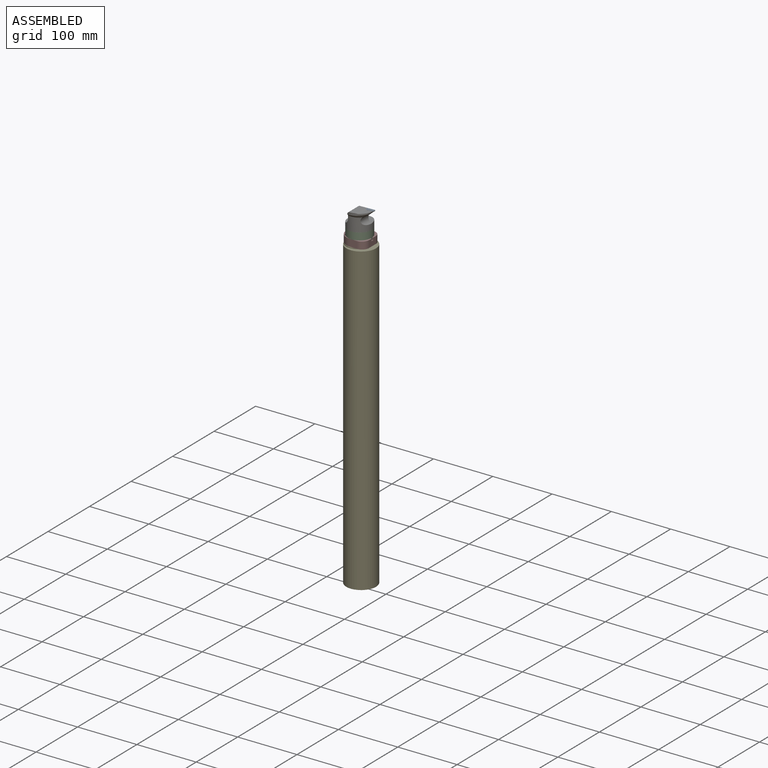
[diagram: assembled view]
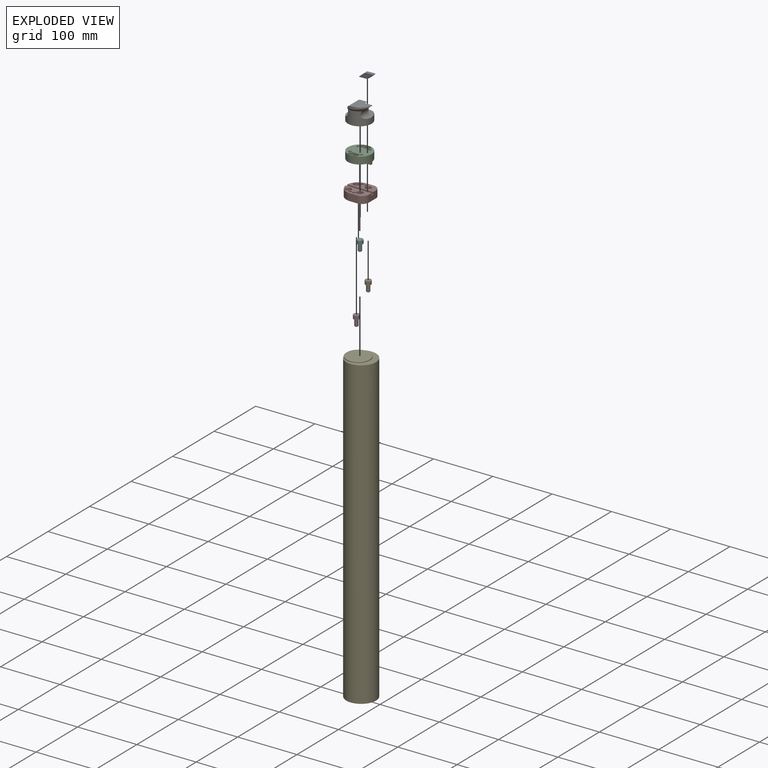
[diagram: exploded view]
GUIDED TOUR — MATED ASSEMBLY (Onshape document 3ae7c87c6261f5c35306a99a, AutoMate assembly 3ae7c87c6261f5c35306a99a_89ab46f55ff38780d8af91c2_a198568c1c7bee800be55abb_default)

This assembly has 8 components, labeled P0..P7 below (a component is one placed occurrence of a part; the same part can appear more than once), held together by 7 mates. A mate is a constraint between two components; its type names the relative motion it leaves free:
  FASTENED — locks the two components together rigidly (no relative motion),
  SLIDER — leaves translation along the listed axis free.
Axis/direction vectors are unit vectors and 'through' points are millimeter coordinates, both in the assembly's world frame.

MATES
  1. FASTENED "Fastened 2": P0 <-> P6, direction (-0.104, -0.995, -0.009) through (-15.68, -11.50, 72.88) mm
  2. FASTENED "Fastened 5": P3 <-> P7, direction (0.000, 0.000, -1.000) through (-40.81, 1.61, 26.77) mm
  3. FASTENED "Fastened 6": P5 <-> P7, direction (0.000, 0.000, -1.000) through (-21.01, -18.19, 26.77) mm
  4. FASTENED "Fastened 4": P1 <-> P7, direction (0.000, 0.000, -1.000) through (-21.01, 1.61, 26.77) mm
  5. FASTENED "Fastened 1": P6 <-> P2, direction (0.000, 0.000, -1.000) through (-28.32, -8.26, 46.77) mm
  6. SLIDER "Slider 1": P7 <-> P2, axis (1.000, 0.000, 0.000) through (-28.86, -6.29, 34.77) mm
  7. FASTENED "Fastened 3": P4 <-> P7, direction (0.000, 0.000, 1.000) through (-30.91, -8.29, 22.77) mm

ASSEMBLY ORDER
  1. P5 — the base component [order verified]
  2. P1 [order verified]
  3. P3 [order verified]
  4. P7 [order verified]
  5. P2 [order verified]
  6. P6 [order verified]
  7. P0 [order verified]
  8. P4 [order verified]
(P7 verified with a relaxed clearance tolerance: the source model stores slight part interference there.)
Order-tag legend:
  [order verified] — this step's position reverses a verified removal order: the component was checked to insert without passing through the ones already placed.

Of the 8 components, 1 carries the full construction recipe — the FeatureScript program that regenerates the part's solid from scratch; the rest are supplied as boundary geometry only.
Each toured component is shown spotlighted twice — in the assembled view, then in the exploded view, where a leader line traces a displaced component back to its assembled socket (saturated green if recipe-attached, orange if geometry-only; every other component desaturated gray) — followed by its recipe or geometry summary and the mates that hold it.
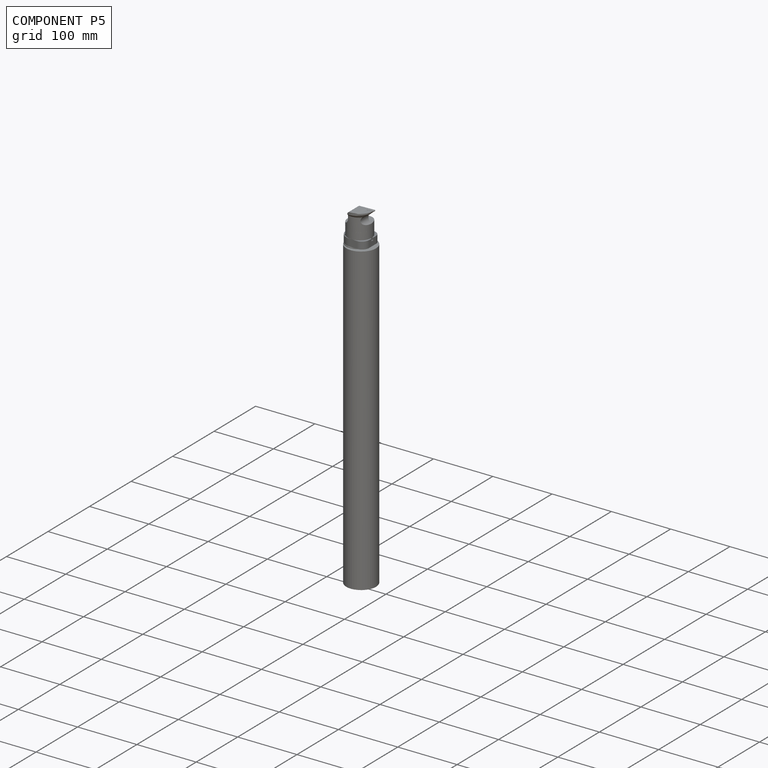
[diagram: component P5 — assembled]
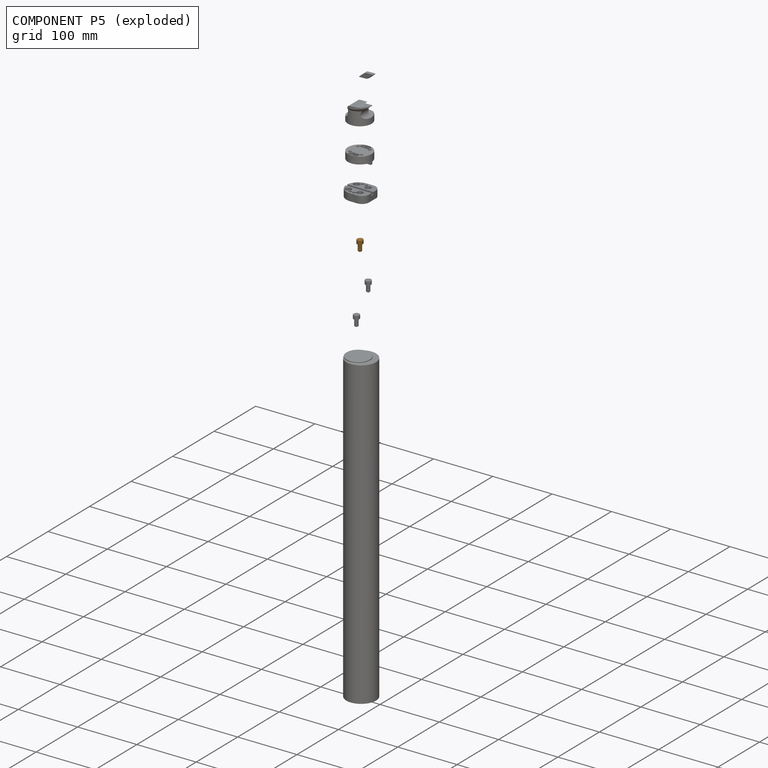
[diagram: component P5 — exploded]
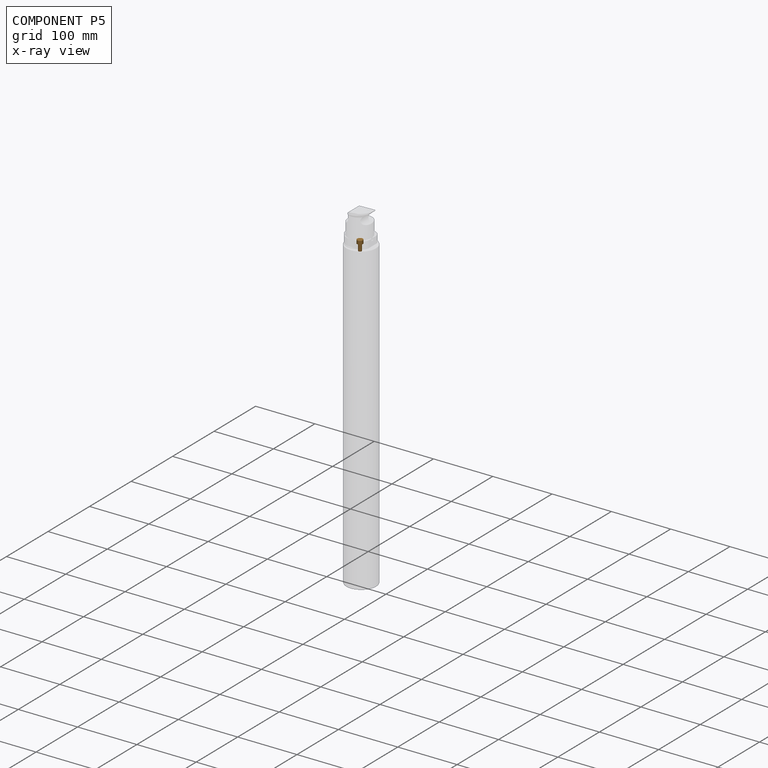
[diagram: component P5 — x-ray view]
COMPONENT P5 — geometry summary (no construction recipe available for this part):
  bounding box: 18.0 x 10.0 x 10.0 mm
  B-rep topology: 1 solid, 6 faces, 16 edges
  volume: 802 mm^3 (45% of its bounding box)
  symmetry: revolution-symmetric about the z axis through its bounding-box center; mirror-symmetric across its x mid-plane, y mid-plane
Held by: FASTENED mate "Fastened 6" to P7.
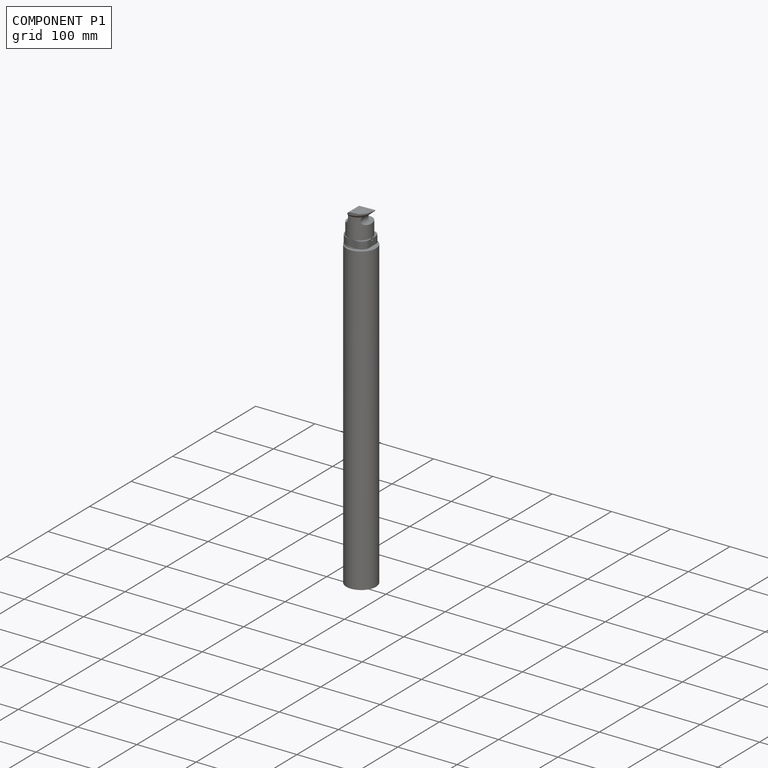
[diagram: component P1 — assembled]
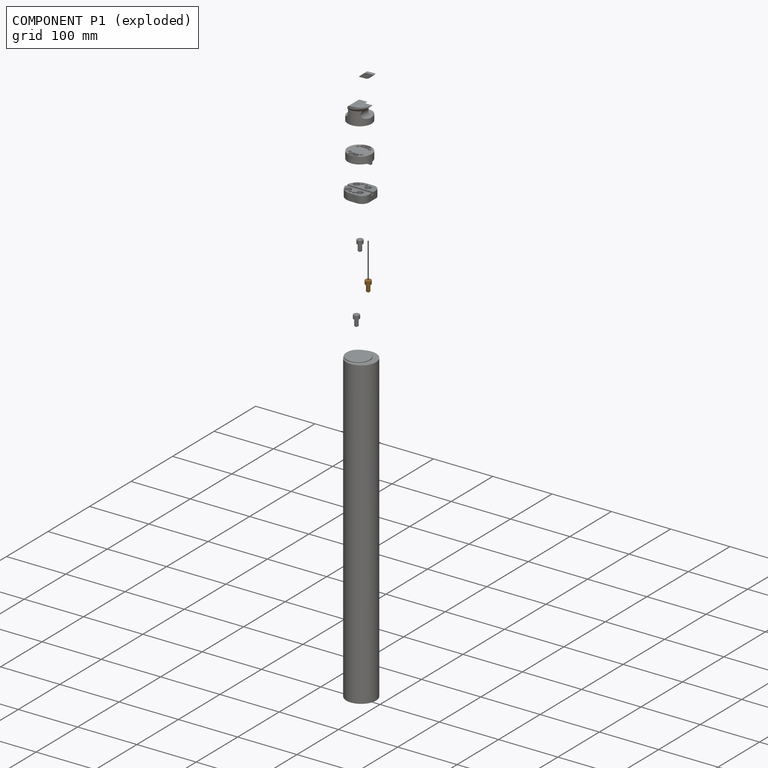
[diagram: component P1 — exploded]
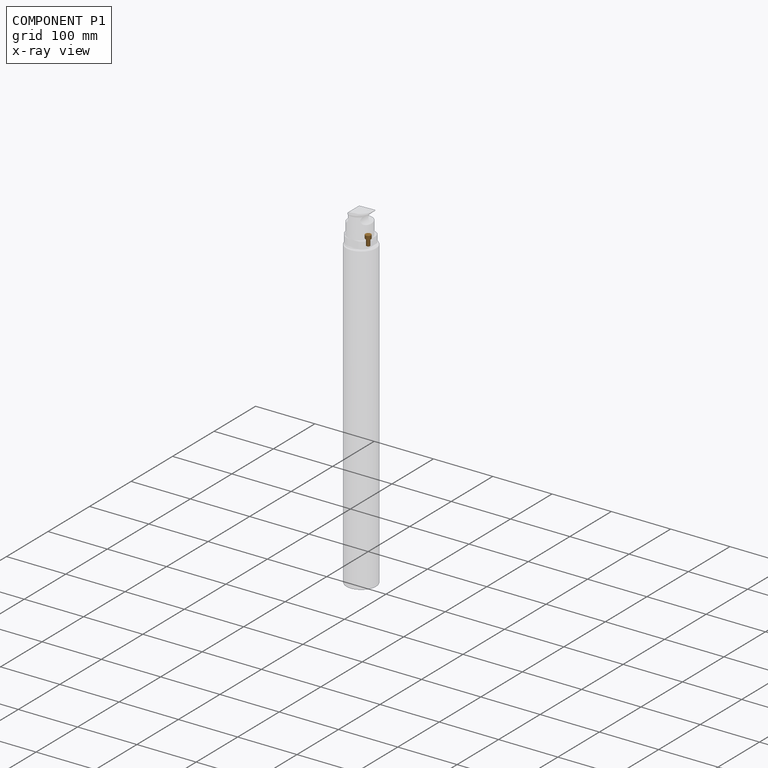
[diagram: component P1 — x-ray view]
COMPONENT P1 — geometry summary (no construction recipe available for this part):
  bounding box: 18.0 x 10.0 x 10.0 mm
  B-rep topology: 1 solid, 6 faces, 16 edges
  volume: 802 mm^3 (45% of its bounding box)
  symmetry: revolution-symmetric about the z axis through its bounding-box center; mirror-symmetric across its x mid-plane, y mid-plane
Held by: FASTENED mate "Fastened 4" to P7.
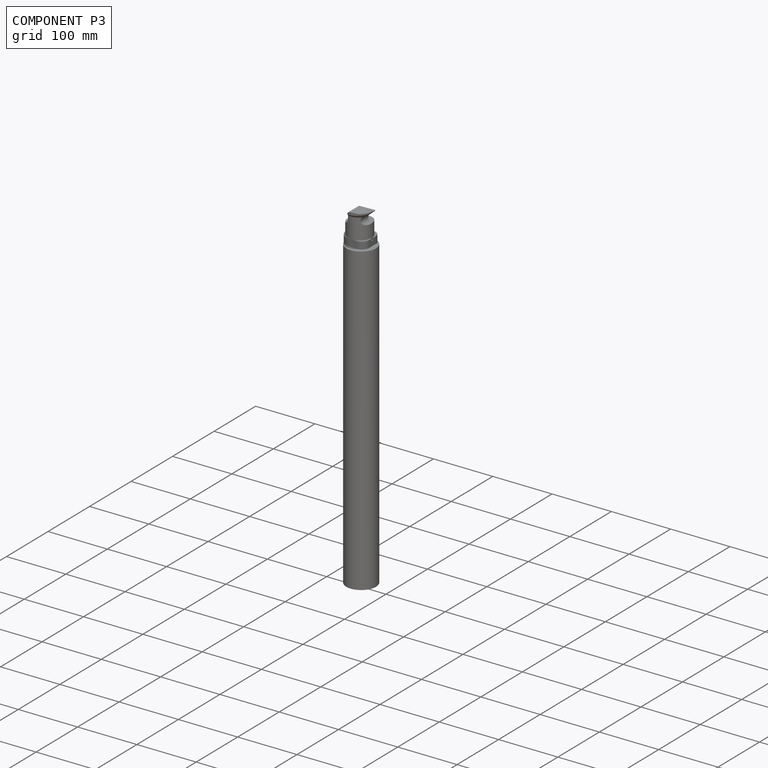
[diagram: component P3 — assembled]
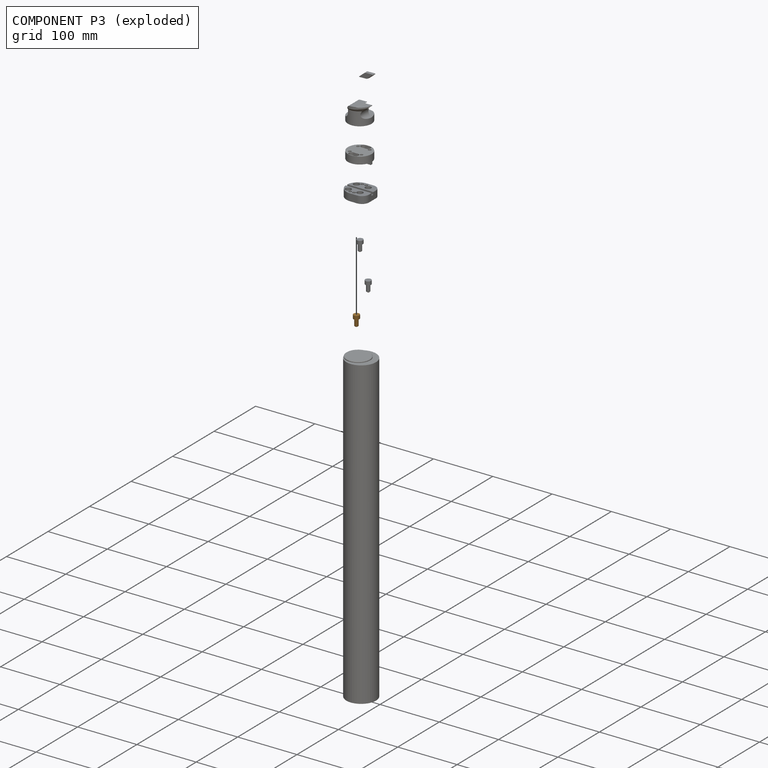
[diagram: component P3 — exploded]
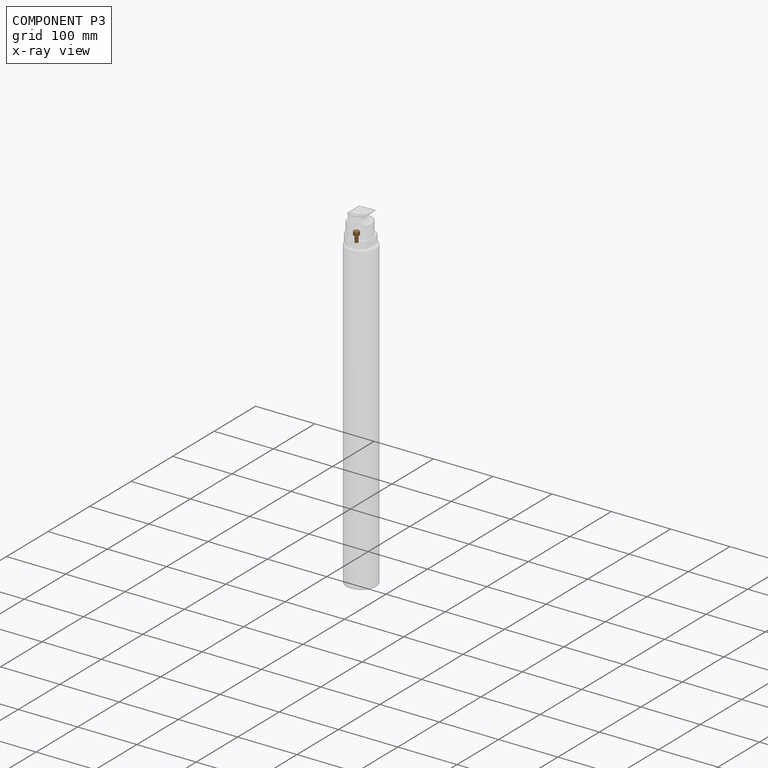
[diagram: component P3 — x-ray view]
COMPONENT P3 — geometry summary (no construction recipe available for this part):
  bounding box: 18.0 x 10.0 x 10.0 mm
  B-rep topology: 1 solid, 6 faces, 16 edges
  volume: 802 mm^3 (45% of its bounding box)
  symmetry: revolution-symmetric about the z axis through its bounding-box center; mirror-symmetric across its x mid-plane, y mid-plane
Held by: FASTENED mate "Fastened 5" to P7.
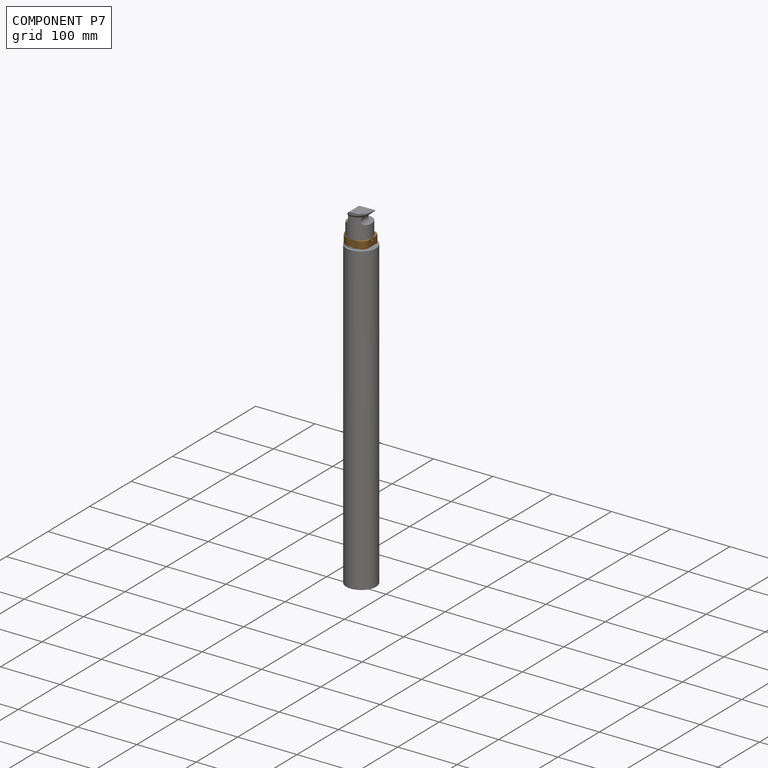
[diagram: component P7 — assembled]
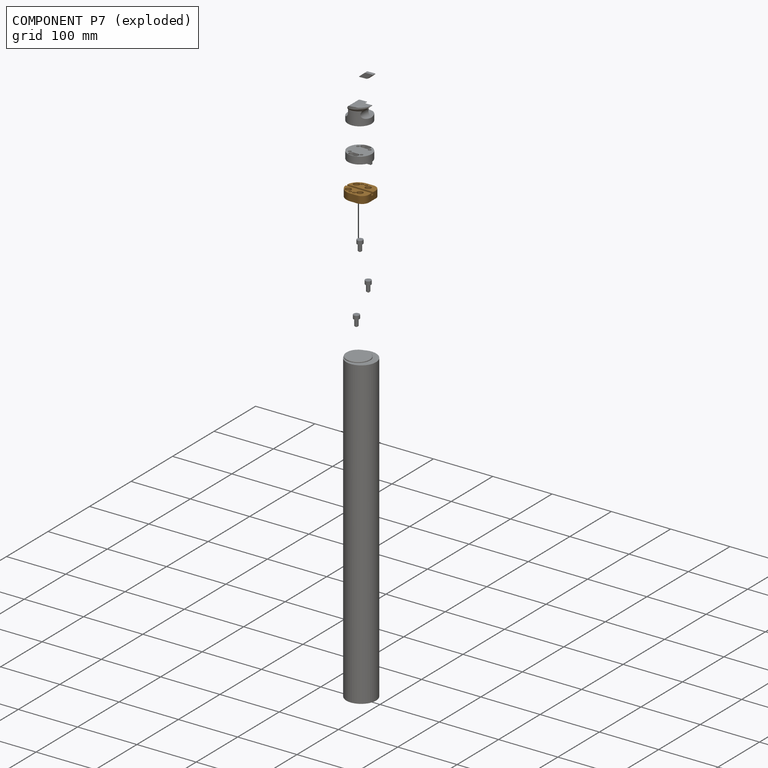
[diagram: component P7 — exploded]
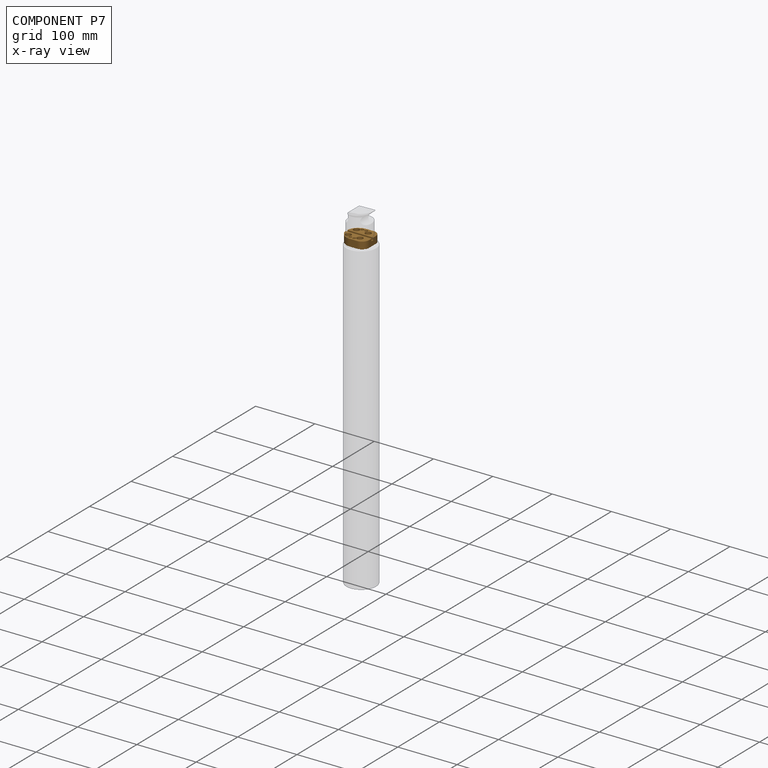
[diagram: component P7 — x-ray view]
COMPONENT P7 — geometry summary (no construction recipe available for this part):
  bounding box: 44.0 x 40.0 x 12.0 mm
  B-rep topology: 1 solid, 28 faces, 132 edges
  volume: 13628 mm^3 (65% of its bounding box)
  symmetry: mirror-symmetric across its y mid-plane
Held by: FASTENED mate "Fastened 5" to P3; FASTENED mate "Fastened 6" to P5; FASTENED mate "Fastened 4" to P1; SLIDER mate "Slider 1" to P2; FASTENED mate "Fastened 3" to P4.
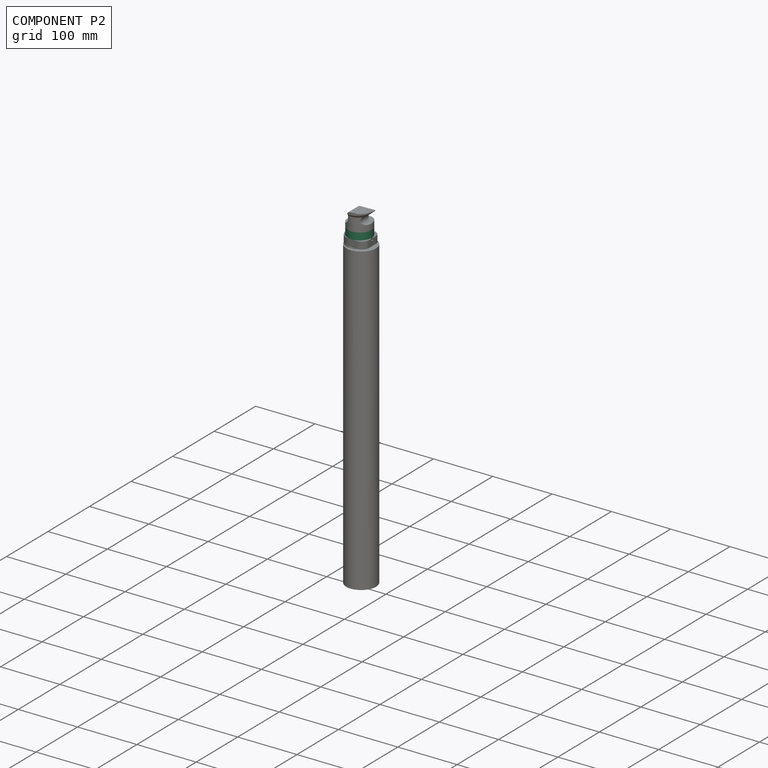
[diagram: component P2 — assembled]
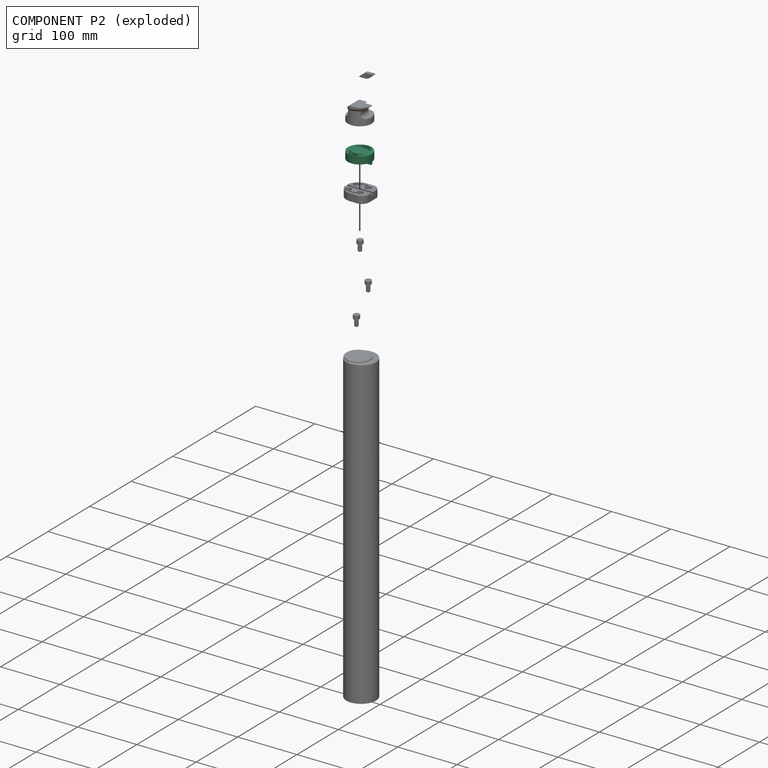
[diagram: component P2 — exploded]
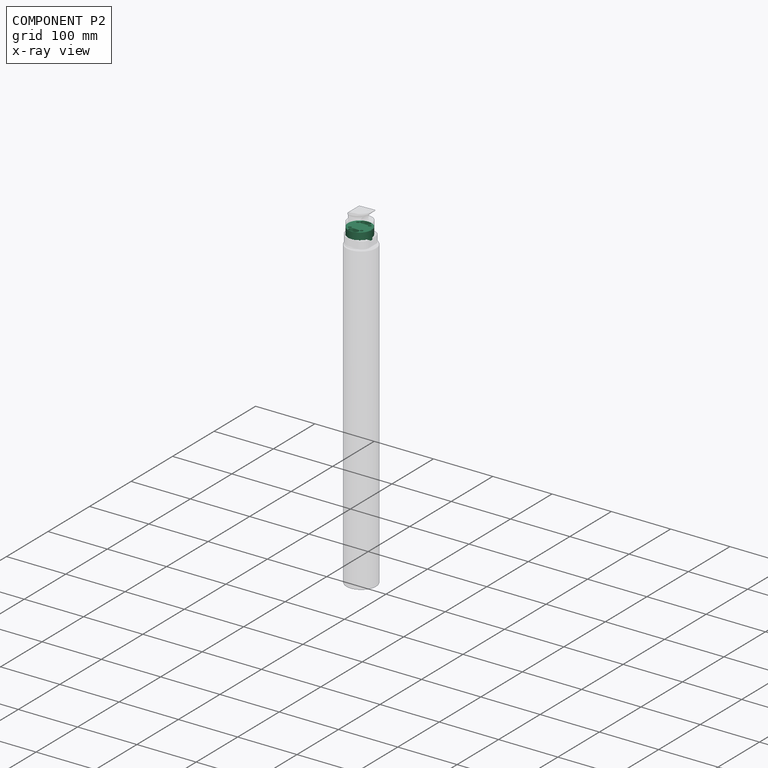
[diagram: component P2 — x-ray view]
COMPONENT P2 — recipe-attached (CADFS 00922199, mesh-verified: the recipe's output STEP matches this component's geometry to below the mesh-comparison resolution (tessellation chordal tolerance ~0.0881 mm)).
Held by: FASTENED mate "Fastened 1" to P6; SLIDER mate "Slider 1" to P7.
Construction recipe (FeatureScript — the CAD program that rebuilds this solid; sketch coordinates are in the units given by the * unit suffixes, e.g. mm):

FeatureScript 1511;
import(path : "onshape/std/geometry.fs", version : "1511.0");
import(path : "onshape/std/common.fs", version : "1511.0");
const mm = millimeter;
const VERTEX = EntityType.VERTEX;
const EDGE = EntityType.EDGE;
const FACE = EntityType.FACE;
const BODY = EntityType.BODY;
function v(x, y){return vector(x, y);}
function OD(order){return orderDisambiguation(order);}
function OSD(set){return originalSetDisambiguation(set);}
function TD(topology){return topologyDisambiguation(topology);}
function TDD(query){return trueDependencyDisambiguation(query);}
function sQuery(a, b, c) {return sketchEntityQuery(a, b, c);}

annotation { "Feature Type Name" : "Feature", "Feature Type Description" : "" }
export const myFeature = defineFeature(function(context is Context, id is Id, definition is map)
    precondition{}
    {
        {
            var Q0;
            Q0=qCreatedBy(makeId("Top.planeOp"),FACE);
            var sketch = newSketch(context, id + "F0", { "sketchPlane" : qUnion([Q0])});
            skCircle(sketch, "E0", {"center": v(0, 0) * mm, "radius": 20 * mm});
            skCircle(sketch, "E1", {"center": v(0, 0) * mm, "radius": 14 * mm, "construction": true});
            skLineSegment(sketch, "E2", {"start": v(0, 0) * mm, "end": v(18.43, 18.43) * mm, "construction": true});
            skCircle(sketch, "E3", {"center": v(9.9, 9.9) * mm, "radius": 2.5 * mm});
            skCircle(sketch, "E4.1.0", {"center": v(-9.9, 9.9) * mm, "radius": 2.5 * mm});
            skCircle(sketch, "E4.2.0", {"center": v(-9.9, -9.9) * mm, "radius": 2.5 * mm});
            skCircle(sketch, "E4.3.0", {"center": v(9.9, -9.9) * mm, "radius": 2.5 * mm});
            skSolve(sketch);
        }
        {
            var Q0;
            Q0=makeQuery(id+"F0.imprint","IMPRINT",FACE,{"disambiguationData":[TD([[makeQuery(id+"F0.imprint","IMPRINT",EDGE,{"derivedFrom":sQuery(id+"F0.wireOp",EDGE,"E0")}),1.0]])]});
            extrude(context, id + "F1", {"entities" : qUnion([Q0]), "depth" : (12) * mm, "offsetDistance" : 25 * mm});
        }
        {
            var Q0;
            Q0=makeQuery(id+"F1.opExtrude","CAP_FACE",FACE,{"disambiguationData":[OSD([sQuery(id+"F0.wireOp",EDGE,"E0"),sQuery(id+"F0.wireOp",EDGE,"E3"),sQuery(id+"F0.wireOp",EDGE,"E4.1.0"),sQuery(id+"F0.wireOp",EDGE,"E4.2.0"),sQuery(id+"F0.wireOp",EDGE,"E4.3.0")])],"isStart":true});
            var sketch = newSketch(context, id + "F2", { "sketchPlane" : qUnion([Q0])});
            skLineSegment(sketch, "E5", {"start": v(-19.9, 1.98) * mm, "end": v(19.9, 1.98) * mm});
            skLineSegment(sketch, "E6", {"start": v(-19.9, -1.98) * mm, "end": v(19.9, -1.98) * mm});
            skSolve(sketch);
        }
        {
            var Q0;
            {var subQ0=sQuery(id+"F2.wireOp",EDGE,"E5");Q0=makeQuery(id+"F2.imprint","IMPRINT",FACE,{"disambiguationData":[TD([[makeQuery(id+"F2.imprint","IMPRINT",EDGE,{"derivedFrom":subQ0}),-1.0]])]});}
            extrude(context, id + "F3", {"entities" : qUnion([Q0]), "operationType" : NewBodyOperationType.ADD, "depth" : 3.9 * mm, "offsetDistance" : 25 * mm});
        }
        {
            var Q0;
            Q0=makeQuery(id+"F1.opExtrude","CAP_FACE",FACE,{"disambiguationData":[OSD([sQuery(id+"F0.wireOp",EDGE,"E0"),sQuery(id+"F0.wireOp",EDGE,"E3"),sQuery(id+"F0.wireOp",EDGE,"E4.1.0"),sQuery(id+"F0.wireOp",EDGE,"E4.2.0"),sQuery(id+"F0.wireOp",EDGE,"E4.3.0")])],"isStart":false});
            var sketch = newSketch(context, id + "F4", { "sketchPlane" : qUnion([Q0])});
            skLineSegment(sketch, "E7", {"start": v(-3.75, 17.5) * mm, "end": v(3.75, 17.5) * mm});
            skArc(sketch, "E8", {"start": v(3.75, 17.5) * mm, "mid": v(6.75, 14.5) * mm, "end": v(3.75, 11.5) * mm});
            skLineSegment(sketch, "E9", {"start": v(3.75, 11.5) * mm, "end": v(-3.75, 11.5) * mm});
            skArc(sketch, "E10", {"start": v(-3.75, 11.5) * mm, "mid": v(-6.75, 14.5) * mm, "end": v(-3.75, 17.5) * mm});
            skLineSegment(sketch, "E11", {"start": v(0, 25.86) * mm, "end": v(0, -24.36) * mm, "construction": true});
            skLineSegment(sketch, "E12.MirrorCS", {"start": v(3.75, -11.5) * mm, "end": v(-3.75, -11.5) * mm});
            skLineSegment(sketch, "E13.MirrorCS", {"start": v(-3.75, -17.5) * mm, "end": v(3.75, -17.5) * mm});
            skArc(sketch, "E14.MirrorCS", {"start": v(-3.75, -11.5) * mm, "mid": v(-6.75, -14.5) * mm, "end": v(-3.75, -17.5) * mm});
            skArc(sketch, "E15.MirrorCS", {"start": v(3.75, -17.5) * mm, "mid": v(6.75, -14.5) * mm, "end": v(3.75, -11.5) * mm});
            skSolve(sketch);
        }
        {
            var Q0;
            Q0=makeQuery(id+"F4.imprint","IMPRINT",FACE,{"disambiguationData":[TD([[makeQuery(id+"F4.imprint","IMPRINT",EDGE,{"derivedFrom":sQuery(id+"F4.wireOp",EDGE,"E7")}),-1.0]])]});
            var Q1;
            Q1=makeQuery(id+"F4.imprint","IMPRINT",FACE,{"disambiguationData":[TD([[makeQuery(id+"F4.imprint","IMPRINT",EDGE,{"derivedFrom":sQuery(id+"F4.wireOp",EDGE,"E12.MirrorCS")}),1.0]])]});
            extrude(context, id + "F5", {"entities" : qUnion([Q0, Q1]), "operationType" : NewBodyOperationType.REMOVE, "endBound" : BoundingType.THROUGH_ALL, "oppositeDirection" : true, "depth" : 25 * mm, "offsetDistance" : 25 * mm});
        }
        {
            var Q0;
            Q0=makeQuery(id+"F1.opExtrude","CAP_FACE",FACE,{"disambiguationData":[OSD([sQuery(id+"F0.wireOp",EDGE,"E0"),sQuery(id+"F0.wireOp",EDGE,"E3"),sQuery(id+"F0.wireOp",EDGE,"E4.1.0"),sQuery(id+"F0.wireOp",EDGE,"E4.2.0"),sQuery(id+"F0.wireOp",EDGE,"E4.3.0")])],"isStart":false});
            var sketch = newSketch(context, id + "F6", { "sketchPlane" : qUnion([Q0])});
            skLineSegment(sketch, "E16.0", {"start": v(-3.75, 19) * mm, "end": v(3.75, 19) * mm});
            skArc(sketch, "E16.1", {"start": v(-3.75, 10) * mm, "mid": v(-8.25, 14.5) * mm, "end": v(-3.75, 19) * mm});
            skLineSegment(sketch, "E16.2", {"start": v(3.75, 10) * mm, "end": v(-3.75, 10) * mm});
            skArc(sketch, "E16.3", {"start": v(3.75, 19) * mm, "mid": v(8.25, 14.5) * mm, "end": v(3.75, 10) * mm});
            skLineSegment(sketch, "E17.0", {"start": v(3.75, -10) * mm, "end": v(-3.75, -10) * mm});
            skArc(sketch, "E17.1", {"start": v(3.75, -19) * mm, "mid": v(8.25, -14.5) * mm, "end": v(3.75, -10) * mm});
            skLineSegment(sketch, "E17.2", {"start": v(-3.75, -19) * mm, "end": v(3.75, -19) * mm});
            skArc(sketch, "E17.3", {"start": v(-3.75, -10) * mm, "mid": v(-8.25, -14.5) * mm, "end": v(-3.75, -19) * mm});
            skSolve(sketch);
        }
        {
            var Q0;
            Q0=makeQuery(id+"F6.imprint","IMPRINT",FACE,{"disambiguationData":[TD([[makeQuery(id+"F6.imprint","IMPRINT",EDGE,{"derivedFrom":sQuery(id+"F6.wireOp",EDGE,"E16.0")}),-1.0]])]});
            var Q1;
            Q1=makeQuery(id+"F6.imprint","IMPRINT",FACE,{"disambiguationData":[TD([[makeQuery(id+"F6.imprint","IMPRINT",EDGE,{"derivedFrom":sQuery(id+"F6.wireOp",EDGE,"E17.0")}),1.0]])]});
            extrude(context, id + "F7", {"entities" : qUnion([Q0, Q1]), "operationType" : NewBodyOperationType.REMOVE, "oppositeDirection" : true, "depth" : (8) * mm, "offsetDistance" : 25 * mm});
        }
    });
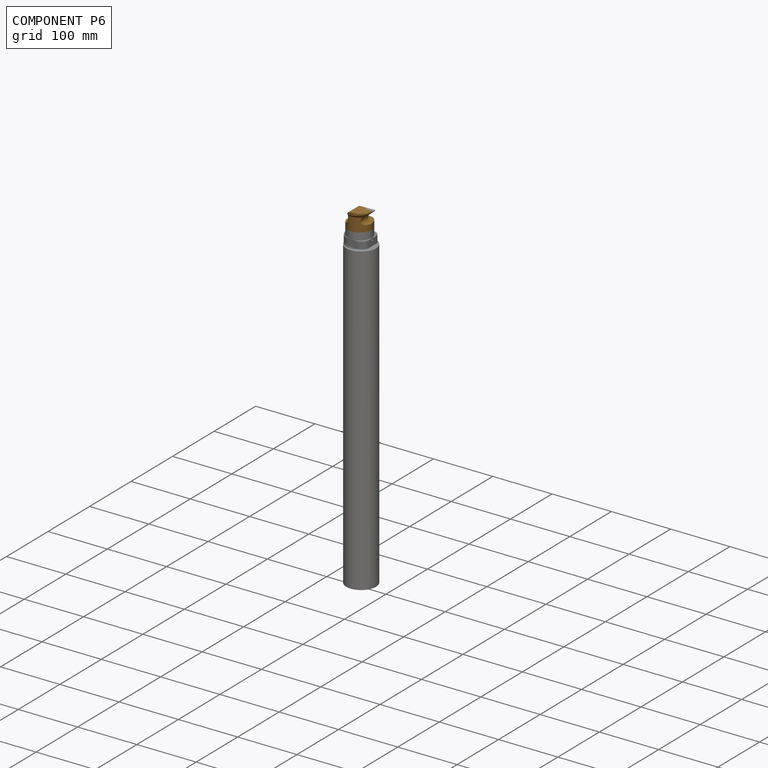
[diagram: component P6 — assembled]
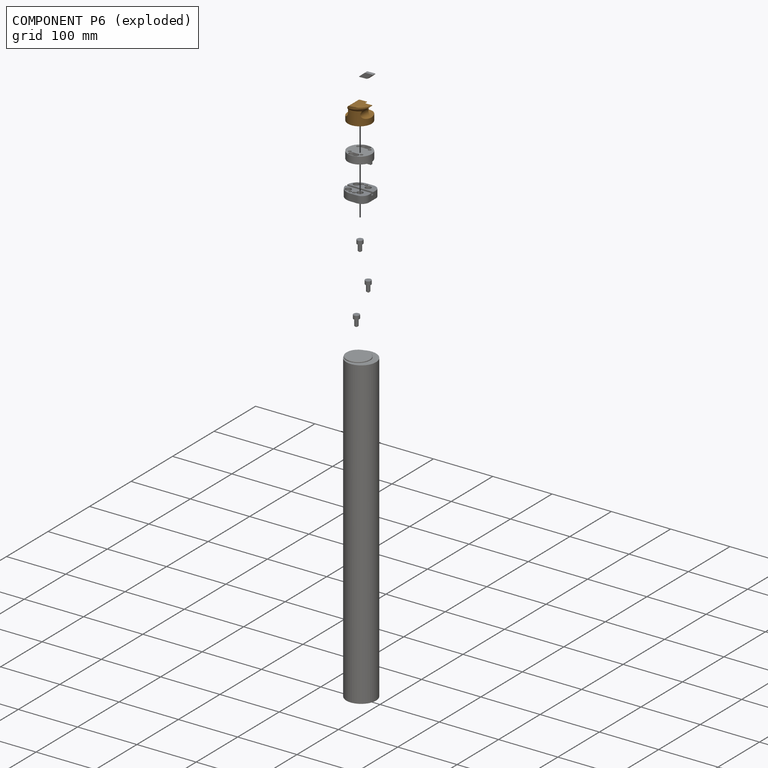
[diagram: component P6 — exploded]
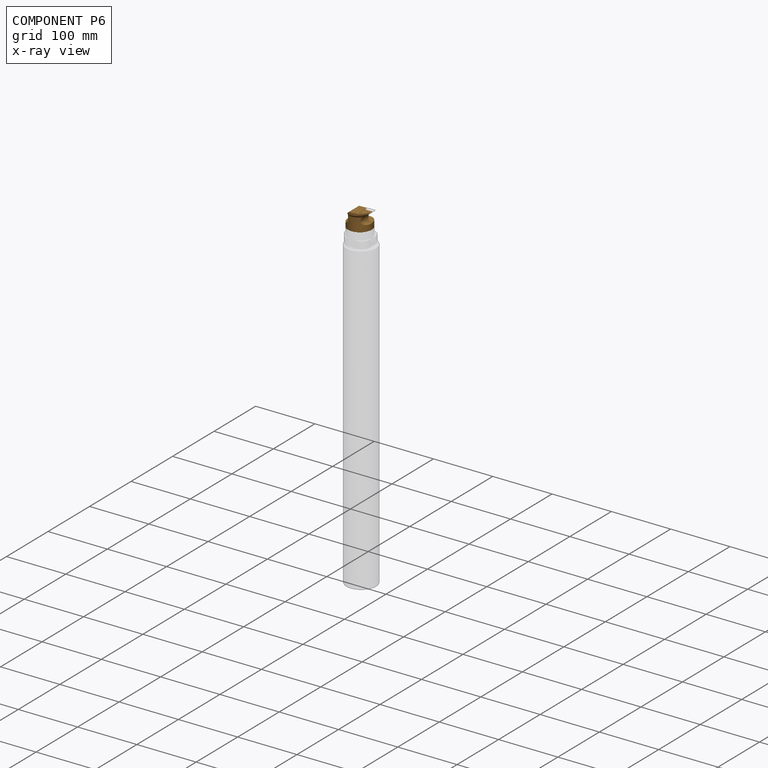
[diagram: component P6 — x-ray view]
COMPONENT P6 — geometry summary (no construction recipe available for this part):
  bounding box: 45.6 x 44.5 x 31.5 mm
  B-rep topology: 1 solid, 23 faces, 126 edges
  volume: 21222 mm^3 (33% of its bounding box)
Held by: FASTENED mate "Fastened 2" to P0; FASTENED mate "Fastened 1" to P2.
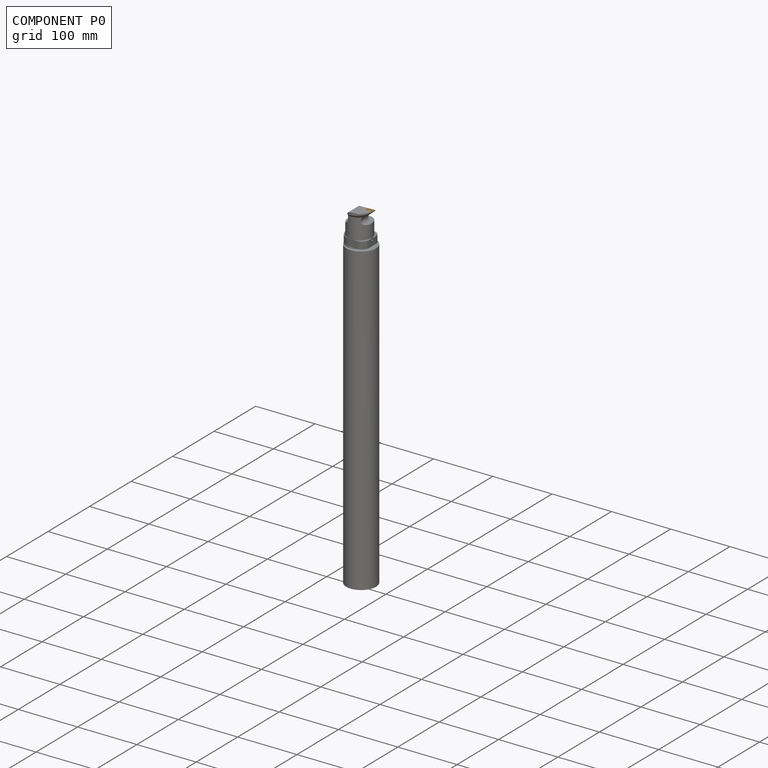
[diagram: component P0 — assembled]
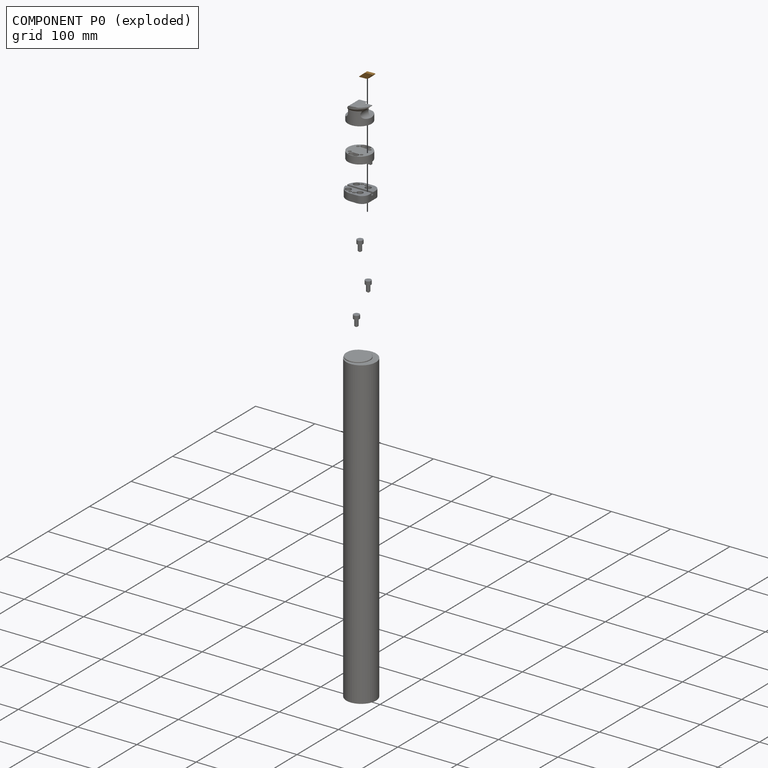
[diagram: component P0 — exploded]
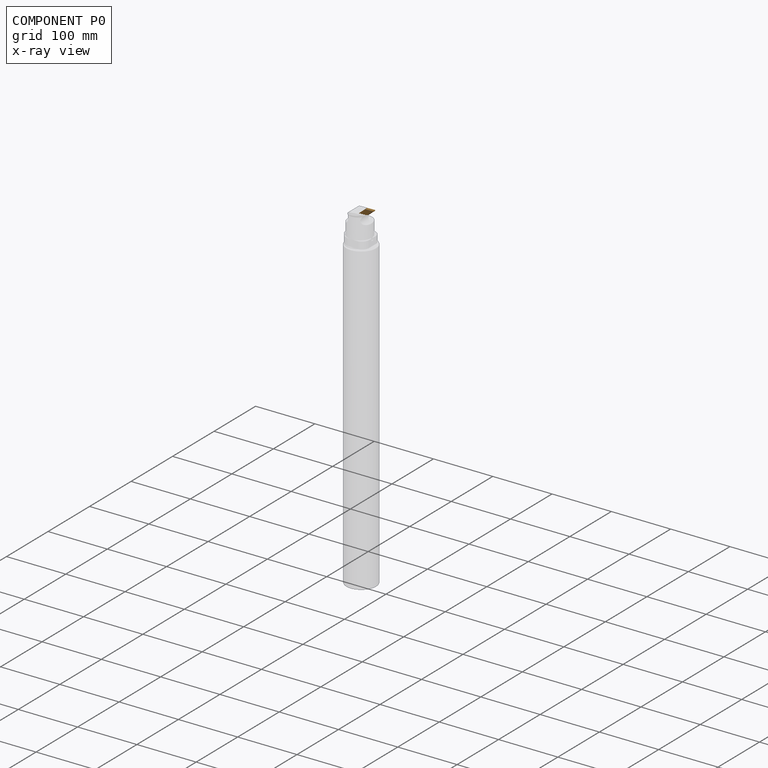
[diagram: component P0 — x-ray view]
COMPONENT P0 — geometry summary (no construction recipe available for this part):
  bounding box: 26.0 x 11.7 x 7.5 mm
  B-rep topology: 1 solid, 10 faces, 48 edges
  volume: 683 mm^3 (30% of its bounding box)
Held by: FASTENED mate "Fastened 2" to P6.
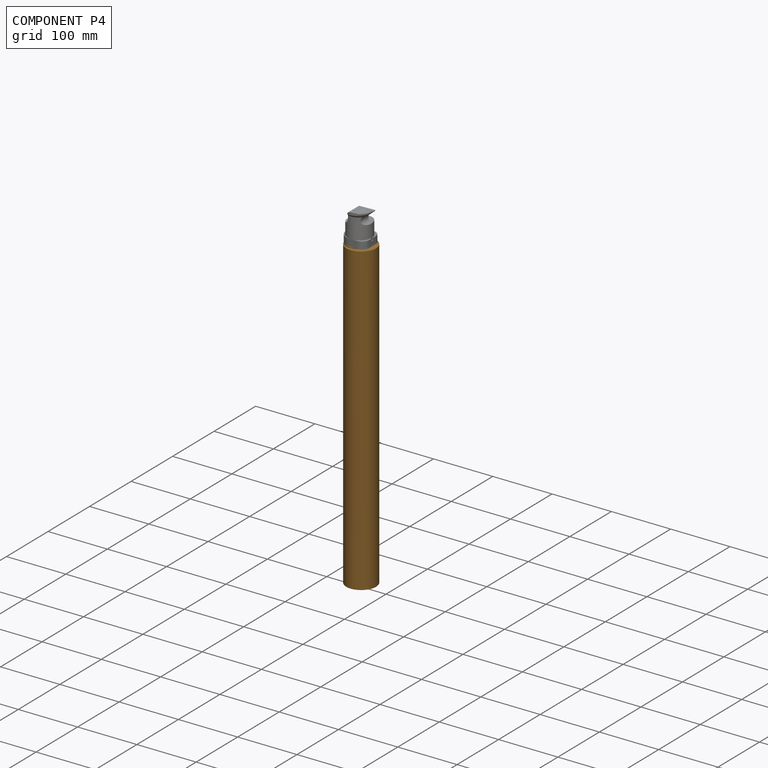
[diagram: component P4 — assembled]
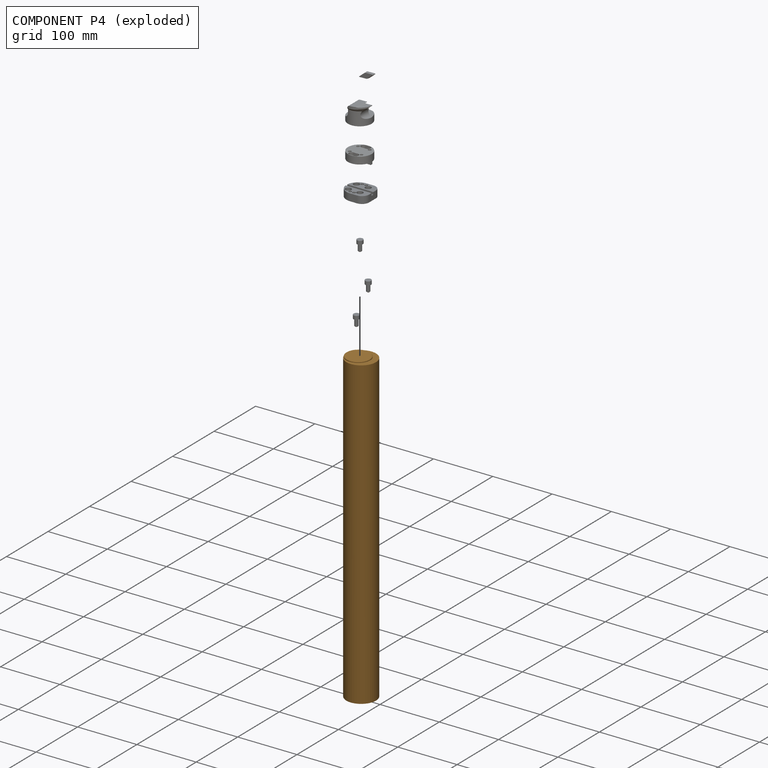
[diagram: component P4 — exploded]
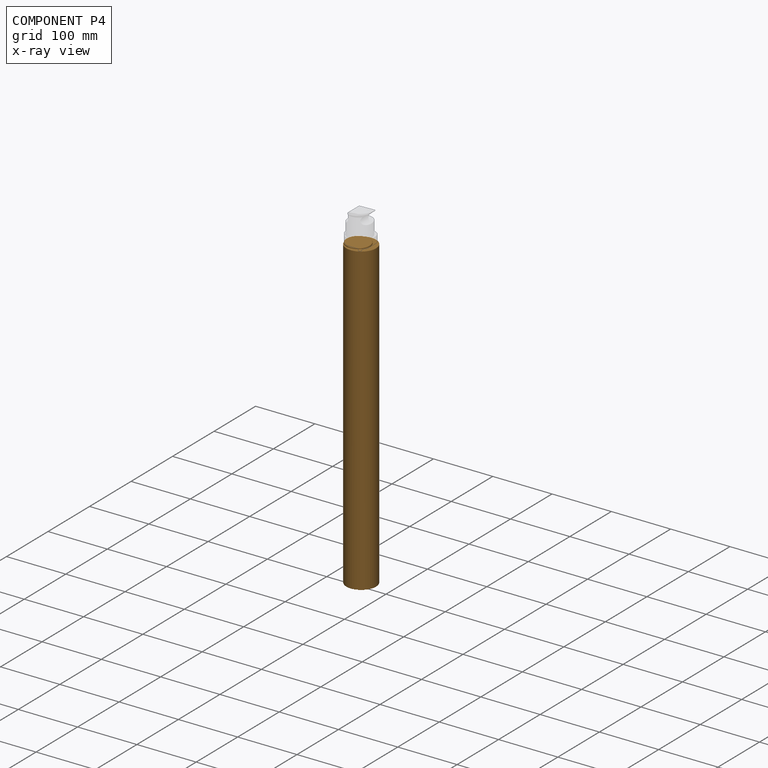
[diagram: component P4 — x-ray view]
COMPONENT P4 — geometry summary (no construction recipe available for this part):
  bounding box: 518.0 x 50.0 x 50.0 mm
  B-rep topology: 1 solid, 6 faces, 20 edges
  volume: 1015649 mm^3 (78% of its bounding box)
  symmetry: 2-fold rotationally symmetric about the x axis; 2-fold rotationally symmetric about the y axis; revolution-symmetric about the z axis through its bounding-box center; mirror-symmetric across its x mid-plane, y mid-plane, z mid-plane
Held by: FASTENED mate "Fastened 3" to P7.
PROVENANCE & LICENSES
Assembly (occurrences, transforms, mates, per-part STEP geometry): AutoMate dataset, Zenodo record 7776208, CC0.
Construction recipes: CADFS (HuggingFace VladPyatov/CADFS, CC-BY-4.0, layered over the ABC dataset), FeatureScript reconstruction programs keyed by ABC model id.
Join: ABC meta listings map ABC model id -> Onshape documentId; within a shared document, parts are matched by geometric signature (bounding-box dims + volume at 0.1% relative tolerance, exact B-rep face/solid counts).
Verification: 1 of this assembly's 8 components carries a recipe attachment, and every attachment is mesh-verified: the CADFS STEP and the AutoMate member STEP were compared as meshes in their shared local frame (symmetric sampled-point-to-mesh distance); worst across the 1 attachment: below the mesh-comparison resolution (tessellation chordal tolerance ~0.0881 mm) on a 59 mm part.
Renders: orthographic iso camera (az 35 / el 25); the floor grid conveys scale (grid pitch printed in each image; no ruler). In the exploded view each component is displaced by its stored offset vector: the offsets alone carry the explosion direction (mate normal/axis signs are not orientation cues and do not encode it), and separation distances are assigned per mate-chain, not proportionally to assembly-order depth.
